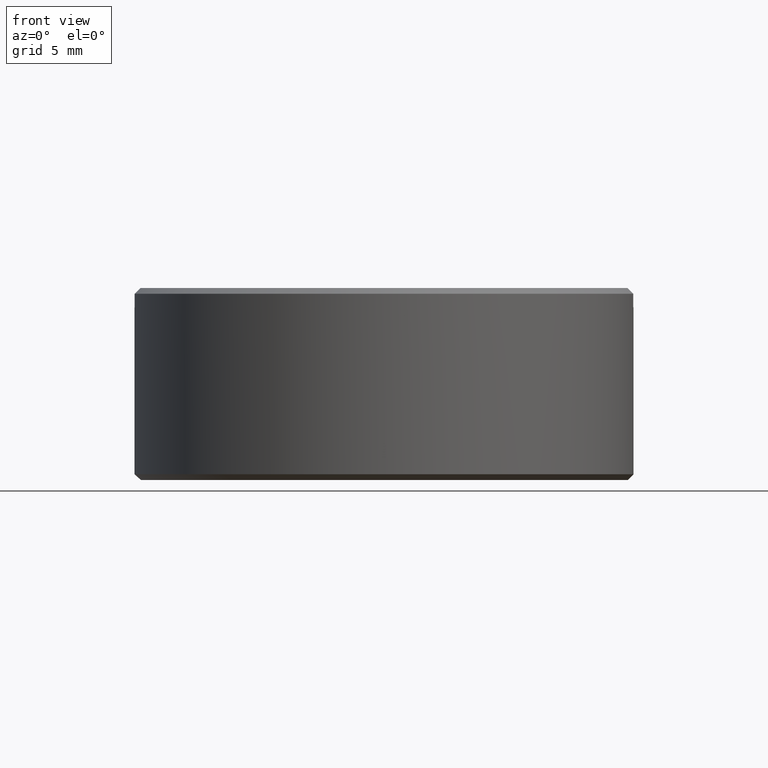
[diagram: clean part render]
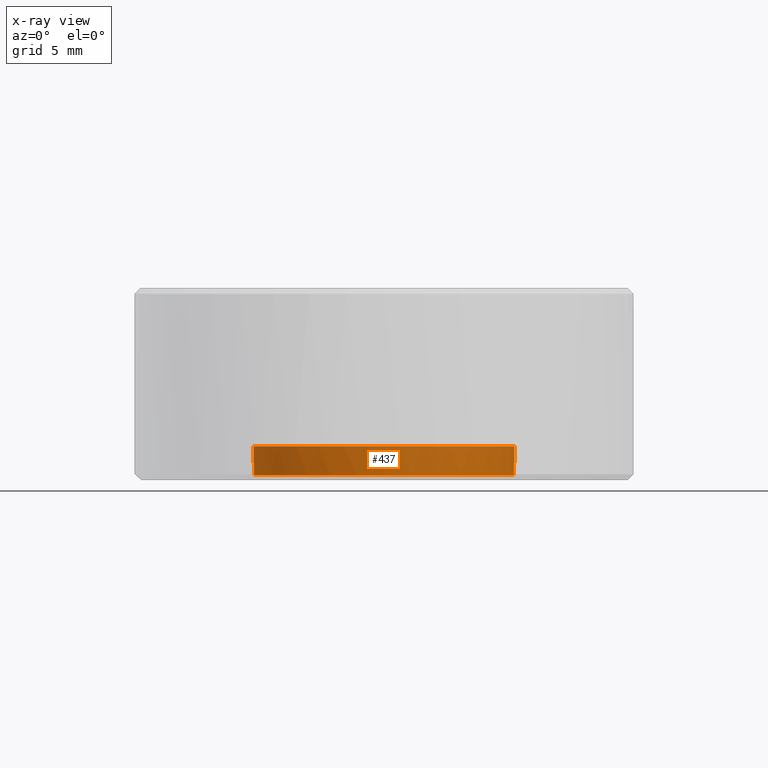
[diagram: x-ray — body ghosted, one internal face saturated and labeled with its STEP entity id]
A machine part, front view, then the same camera in x-ray: the body is ghosted and one INTERNAL B-rep face — a face not visible from any outside direction — is saturated and labeled: STEP entity #437.
In plain terms, the highlighted cylindrical surface (bore or boss wall) has radius 6.795 mm, axis along (0, 0, -1).
Its self-contained STEP definition (entity closure, byte-faithful):
#134 = ORIENTED_EDGE ( 'NONE', *, *, #1074, .T. ) ;
#139 = CIRCLE ( 'NONE', #1043, 6.795000000000003482 ) ;
#162 = DIRECTION ( 'NONE',  ( -1.000000000000000000, 0.000000000000000000, 0.000000000000000000 ) ) ;
#165 = CIRCLE ( 'NONE', #1425, 6.795000000000003482 ) ;
#181 = CARTESIAN_POINT ( 'NONE',  ( 6.768458096198870955, 0.5999999999999993117, -3.000000000000000000 ) ) ;
#184 = VECTOR ( 'NONE', #1421, 1000.000000000000000 ) ;
#192 = ORIENTED_EDGE ( 'NONE', *, *, #1433, .T. ) ;
#200 = ORIENTED_EDGE ( 'NONE', *, *, #981, .T. ) ;
#210 = VECTOR ( 'NONE', #692, 1000.000000000000000 ) ;
#246 = DIRECTION ( 'NONE',  ( -0.000000000000000000, -0.000000000000000000, 1.000000000000000000 ) ) ;
#266 = VERTEX_POINT ( 'NONE', #1176 ) ;
#268 = CYLINDRICAL_SURFACE ( 'NONE', #1109, 6.795000000000003482 ) ;
#273 = EDGE_CURVE ( 'NONE', #1047, #849, #1297, .T. ) ;
#283 = DIRECTION ( 'NONE',  ( -1.000000000000000000, 0.000000000000000000, 0.000000000000000000 ) ) ;
#291 = ORIENTED_EDGE ( 'NONE', *, *, #843, .F. ) ;
#333 = CARTESIAN_POINT ( 'NONE',  ( 6.768458096231236176, 0.5999999999999996447, -4.750000000033050007 ) ) ;
#362 = EDGE_LOOP ( 'NONE', ( #192 ) ) ;
#375 = CARTESIAN_POINT ( 'NONE',  ( -6.768458096198870955, 0.6000000000000001998, -3.000000000000000000 ) ) ;
#400 = CARTESIAN_POINT ( 'NONE',  ( 0.000000000000000000, 0.000000000000000000, -4.749999999999996447 ) ) ;
#437 = ADVANCED_FACE ( 'NONE', ( #975, #1369 ), #268, .T. ) ;
#438 = CARTESIAN_POINT ( 'NONE',  ( 6.768458096196638962, -0.5999999999999998668, -4.100000000000000533 ) ) ;
#446 = CARTESIAN_POINT ( 'NONE',  ( -6.768458096197755403, -0.5999999999999998668, -4.099999999999999645 ) ) ;
#477 = ORIENTED_EDGE ( 'NONE', *, *, #1571, .F. ) ;
#483 = DIRECTION ( 'NONE',  ( -1.000000000000000000, 0.000000000000000000, 0.000000000000000000 ) ) ;
#491 = VERTEX_POINT ( 'NONE', #333 ) ;
#512 = VERTEX_POINT ( 'NONE', #559 ) ;
#559 = CARTESIAN_POINT ( 'NONE',  ( 6.768458096229981180, -0.5999999999999998668, -4.750000000033189451 ) ) ;
#624 = VECTOR ( 'NONE', #1206, 1000.000000000000000 ) ;
#636 = VERTEX_POINT ( 'NONE', #862 ) ;
#646 = DIRECTION ( 'NONE',  ( -1.000000000000000000, 0.000000000000000000, 0.000000000000000000 ) ) ;
#692 = DIRECTION ( 'NONE',  ( -0.000000000000000000, 0.000000000000000000, 1.000000000000000000 ) ) ;
#723 = LINE ( 'NONE', #375, #903 ) ;
#732 = CARTESIAN_POINT ( 'NONE',  ( 6.768458096198870955, 0.5999999999999996447, -4.099999999999999645 ) ) ;
#749 = VERTEX_POINT ( 'NONE', #732 ) ;
#754 = AXIS2_PLACEMENT_3D ( 'NONE', #908, #792, #1283 ) ;
#763 = AXIS2_PLACEMENT_3D ( 'NONE', #1276, #1269, #162 ) ;
#777 = DIRECTION ( 'NONE',  ( -1.000000000000000000, 0.000000000000000000, 0.000000000000000000 ) ) ;
#792 = DIRECTION ( 'NONE',  ( -0.000000000000000000, -0.000000000000000000, 1.000000000000000000 ) ) ;
#801 = LINE ( 'NONE', #438, #210 ) ;
#823 = CARTESIAN_POINT ( 'NONE',  ( -6.768458096196638962, -0.5999999999999998668, -4.100000000000000533 ) ) ;
#843 = EDGE_CURVE ( 'NONE', #749, #266, #139, .T. ) ;
#849 = VERTEX_POINT ( 'NONE', #1496 ) ;
#862 = CARTESIAN_POINT ( 'NONE',  ( -6.768458096198870955, 0.6000000000000000888, -4.099999999999999645 ) ) ;
#900 = ORIENTED_EDGE ( 'NONE', *, *, #978, .T. ) ;
#903 = VECTOR ( 'NONE', #1079, 1000.000000000000000 ) ;
#908 = CARTESIAN_POINT ( 'NONE',  ( 0.000000000000000000, 0.000000000000000000, -4.749999999999996447 ) ) ;
#938 = EDGE_CURVE ( 'NONE', #749, #491, #1058, .T. ) ;
#958 = DIRECTION ( 'NONE',  ( 0.000000000000000000, 0.000000000000000000, -1.000000000000000000 ) ) ;
#975 = FACE_OUTER_BOUND ( 'NONE', #1552, .T. ) ;
#978 = EDGE_CURVE ( 'NONE', #849, #512, #1080, .T. ) ;
#981 = EDGE_CURVE ( 'NONE', #512, #266, #801, .T. ) ;
#1043 = AXIS2_PLACEMENT_3D ( 'NONE', #1603, #1134, #777 ) ;
#1047 = VERTEX_POINT ( 'NONE', #446 ) ;
#1058 = LINE ( 'NONE', #181, #184 ) ;
#1074 = EDGE_CURVE ( 'NONE', #1465, #636, #723, .T. ) ;
#1079 = DIRECTION ( 'NONE',  ( -0.000000000000000000, -0.000000000000000000, 1.000000000000000000 ) ) ;
#1080 = CIRCLE ( 'NONE', #754, 6.795000000000003482 ) ;
#1109 = AXIS2_PLACEMENT_3D ( 'NONE', #1507, #1154, #283 ) ;
#1134 = DIRECTION ( 'NONE',  ( 0.000000000000000000, 0.000000000000000000, -1.000000000000000000 ) ) ;
#1154 = DIRECTION ( 'NONE',  ( 0.000000000000000000, 0.000000000000000000, -1.000000000000000000 ) ) ;
#1167 = CIRCLE ( 'NONE', #1373, 6.795000000000003482 ) ;
#1176 = CARTESIAN_POINT ( 'NONE',  ( 6.768458096197755403, -0.5999999999999998668, -4.099999999999999645 ) ) ;
#1184 = CARTESIAN_POINT ( 'NONE',  ( 0.000000000000000000, 0.000000000000000000, -4.099999999999999645 ) ) ;
#1206 = DIRECTION ( 'NONE',  ( 0.000000000000000000, -0.000000000000000000, -1.000000000000000000 ) ) ;
#1245 = CARTESIAN_POINT ( 'NONE',  ( -6.795000000000003482, 0.000000000000000000, -3.249999999999998668 ) ) ;
#1248 = CIRCLE ( 'NONE', #763, 6.795000000000003482 ) ;
#1259 = ORIENTED_EDGE ( 'NONE', *, *, #273, .T. ) ;
#1269 = DIRECTION ( 'NONE',  ( 0.000000000000000000, 0.000000000000000000, -1.000000000000000000 ) ) ;
#1276 = CARTESIAN_POINT ( 'NONE',  ( 0.000000000000000000, 0.000000000000000000, -3.249999999999998668 ) ) ;
#1283 = DIRECTION ( 'NONE',  ( -1.000000000000000000, 0.000000000000000000, 0.000000000000000000 ) ) ;
#1297 = LINE ( 'NONE', #823, #624 ) ;
#1360 = ORIENTED_EDGE ( 'NONE', *, *, #938, .T. ) ;
#1367 = EDGE_CURVE ( 'NONE', #491, #1465, #165, .T. ) ;
#1369 = FACE_OUTER_BOUND ( 'NONE', #362, .T. ) ;
#1373 = AXIS2_PLACEMENT_3D ( 'NONE', #1184, #958, #483 ) ;
#1420 = CARTESIAN_POINT ( 'NONE',  ( -6.768458096231445786, 0.6000000000000000888, -4.750000000032840397 ) ) ;
#1421 = DIRECTION ( 'NONE',  ( 0.000000000000000000, 0.000000000000000000, -1.000000000000000000 ) ) ;
#1425 = AXIS2_PLACEMENT_3D ( 'NONE', #400, #246, #646 ) ;
#1433 = EDGE_CURVE ( 'NONE', #1500, #1500, #1248, .T. ) ;
#1457 = ORIENTED_EDGE ( 'NONE', *, *, #1367, .T. ) ;
#1465 = VERTEX_POINT ( 'NONE', #1420 ) ;
#1496 = CARTESIAN_POINT ( 'NONE',  ( -6.768458096197755403, -0.5999999999999998668, -4.750000000066401107 ) ) ;
#1500 = VERTEX_POINT ( 'NONE', #1245 ) ;
#1507 = CARTESIAN_POINT ( 'NONE',  ( 0.000000000000000000, 0.000000000000000000, -3.000000000000000000 ) ) ;
#1552 = EDGE_LOOP ( 'NONE', ( #291, #1360, #1457, #134, #477, #1259, #900, #200 ) ) ;
#1571 = EDGE_CURVE ( 'NONE', #1047, #636, #1167, .T. ) ;
#1603 = CARTESIAN_POINT ( 'NONE',  ( 0.000000000000000000, 0.000000000000000000, -4.099999999999999645 ) ) ;